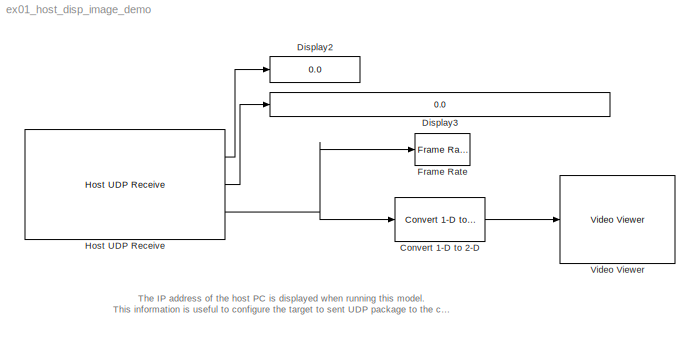
MODEL ex01_host_disp_image_demo
KIND model
BLOCK [Reference] Convert 1-D to 2-D  REF=dspsigattribs/Convert 1-D to 2-D
  FunctionWithSeparateData = off
  M = 160
  N = 120
  Ports = [1, 1]
  RTWMemSecDataConstants = Inherit from model
  RTWMemSecDataInternal = Inherit from model
  RTWMemSecDataParameters = Inherit from model
  RTWMemSecFuncExecute = Inherit from model
  RTWMemSecFuncInitTerm = Inherit from model
  ShowPortLabels = none
  SourceBlock = dspsigattribs/Convert 1-D to 2-D
  SourceType = Convert 1-D to 2-D
  SystemSampleTime = -1
  frameBasedOut = off
BLOCK [Display] Display2
  Decimation = 1
  Lockdown = off
  Ports = [1]
BLOCK [Display] Display3
  Decimation = 1
  Lockdown = off
  Ports = [1]
BLOCK [Reference] Frame Rate  REF=vipsnks/Frame Rate\nDisplay
  DialogController = vipDDGCreate
  DialogControllerArgs = DataTag0
  Ports = [1]
  SourceBlock = vipsnks/Frame Rate\nDisplay
  SourceType = Frame Rate Display
  UpdateRate = 10
BLOCK [Reference] Host UDP Receive  REF=waijung_socket_lib/Host UDP Receive
  Ports = [0, 3]
  SourceBlock = waijung_socket_lib/Host UDP Receive
  SourceType = waijung_socket
  address = 192.168.1.21
  blockid = HostUDPReceive
  compat = 0
  conf = HostReceive
  datacount = 120*160
  datasource = BufferStream
  datatype = uint8
  echo = off
  inputportlabel = {}
  inputporttype = []
  inputportwidth = []
  options = [7,2,1,8000,1]
  optionstring = []
  outputportlabel = {'Remote Port','Remote IP(1:4)','Data(1:19200)'}
  outputporttype = [5,3,3]
  outputportwidth = [1,4,19200]
  port = 7
  portpinstr = 0
  porttype_double = 0
  porttype_int16 = 0
  porttype_int32 = 0
  porttype_int8 = 0
  porttype_single = 0
  porttype_uint16 = 0
  porttype_uint32 = 1
  porttype_uint8 = 0
  protocol = UDP
  sampletime = 0.1
  timeout = 8
  transfer = Blocking
BLOCK [Reference] Video Viewer  REF=vipsnks/Video Viewer
  AxisZoom = on
  DialogControllerArgs = DataTag2
  FigPos = [190 518 431 373]
  OpenAtMdlStart = on
  Ports = [1]
  SourceBlock = vipsnks/Video Viewer
  SourceType = Video Viewer
  UserData = DataTag1
  UserDataPersistent = on
  colormapValue = gray(256)
  imagePorts = One multidimensional signal
  inputType = Obsolete7b
  maxInputVal = 255
  minInputVal = 0
  specRange = off
  trueSizedOnce = off
  useColorMap = off
ANNOTATION (root): The IP address of the host PC is displayed when running this model.\nThis information is useful to configure the target to sent UDP package to the correct destimation IP address.
LINE Convert 1-D to 2-D:1 -> Video Viewer:1
LINE Host UDP Receive:1 -> Display2:1
LINE Host UDP Receive:2 -> Display3:1
NET Host UDP Receive:3 -> Convert 1-D to 2-D:1, Frame Rate:1
note: NET lines group one-source signal fan-out (src -> all destinations, sorted); 1:1 wires keep LINE
